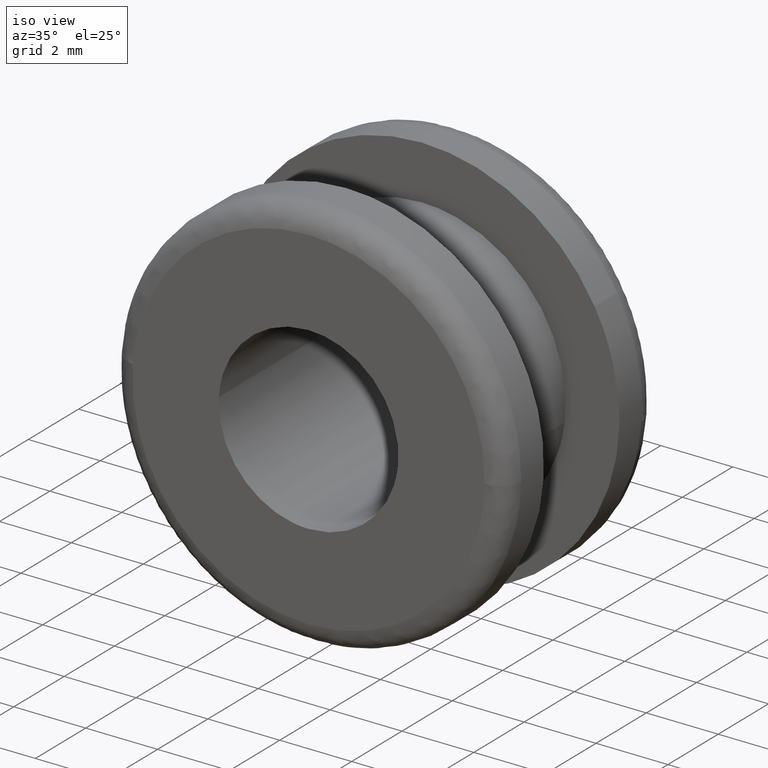
[diagram: clean part render]
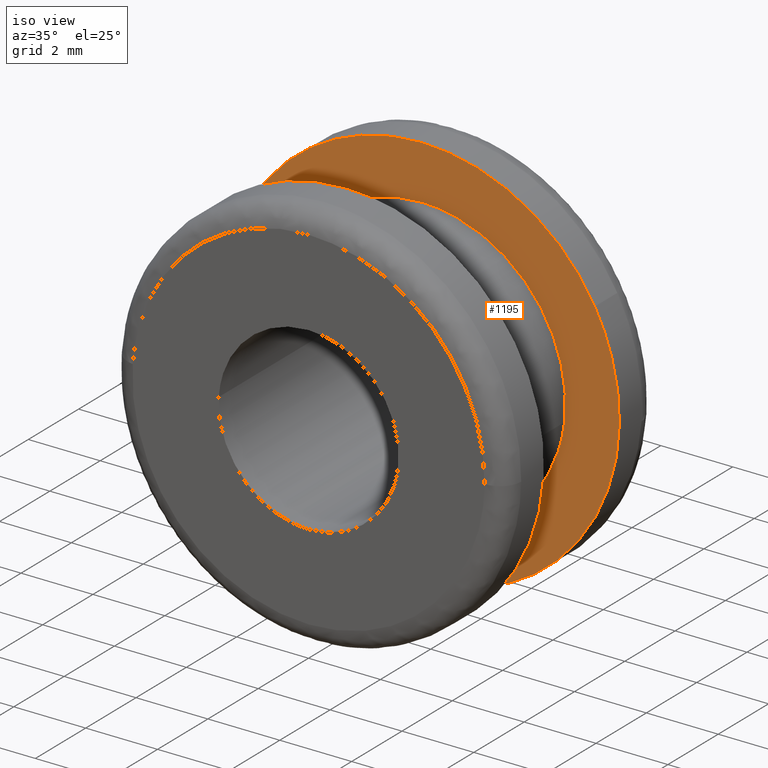
[diagram: same view with one face highlighted and labeled with its STEP entity id]
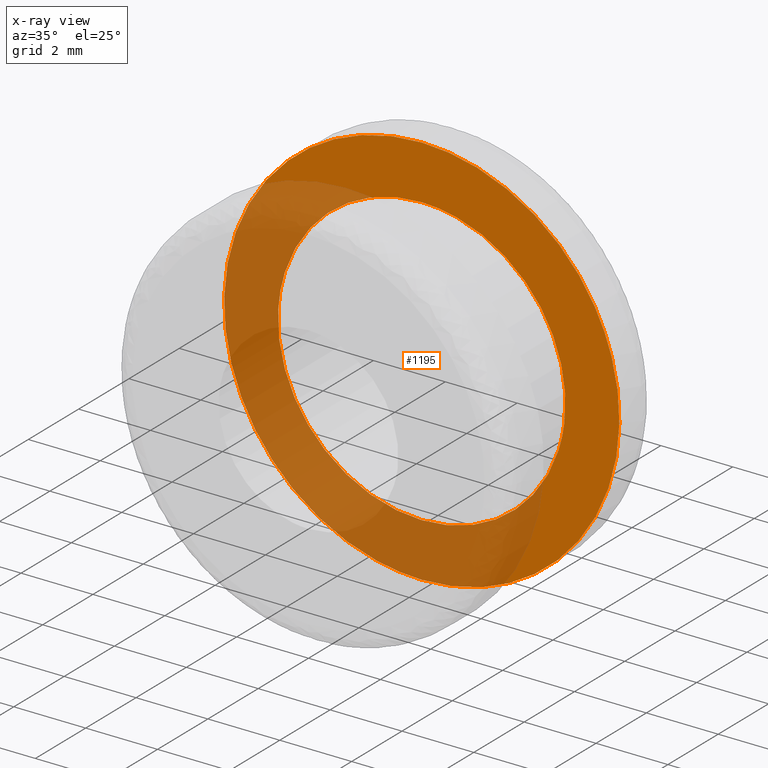
[diagram: x-ray of the same camera — body ghosted, the highlighted face saturated]
A machine part, iso view. The second image highlights one B-rep face of the part: STEP entity #1195.
The next image is the same camera in x-ray: the body ghosted, the highlighted face saturated — about 50% of this face is hidden behind the body in this view.
In plain terms, the highlighted face is a freeform B-spline surface patch.
Its self-contained STEP definition (entity closure, byte-faithful):
#301=CARTESIAN_POINT('',(3.972038515447482,4.500000000000000,-0.472133489375299));
#302=VERTEX_POINT('',#301);
#308=CARTESIAN_POINT('',(0.0,4.500000000000000,4.0));
#309=VERTEX_POINT('',#308);
#310=CARTESIAN_POINT('',(3.972038515447482,4.500000000000000,-0.472133489375300));
#311=CARTESIAN_POINT('',(4.000000000000000,4.500000000000001,-0.236894735749473));
#312=CARTESIAN_POINT('',(4.0,4.500000000000000,-1.928755E-016));
#313=CARTESIAN_POINT('',(4.000000000000000,4.500000000000000,4.000000000000000));
#314=CARTESIAN_POINT('',(0.0,4.500000000000000,4.0));
#322=(BOUNDED_CURVE()B_SPLINE_CURVE(2,(#310,#311,#312,#313,#314),.UNSPECIFIED.,.F.,.U.)B_SPLINE_CURVE_WITH_KNOTS((3,2,3),(0.229562620275259,0.250000000000000,0.500000000000000),.UNSPECIFIED.)CURVE()GEOMETRIC_REPRESENTATION_ITEM()RATIONAL_B_SPLINE_CURVE((0.956027041842938,0.976056120273231,1.0,0.707106781186548,1.0))REPRESENTATION_ITEM(''));
#323=EDGE_CURVE('',#302,#309,#322,.T.);
#325=CARTESIAN_POINT('',(-3.992539417849797,4.500000000000000,0.244190493062515));
#326=VERTEX_POINT('',#325);
#327=CARTESIAN_POINT('',(0.0,4.500000000000000,4.0));
#328=CARTESIAN_POINT('',(-3.762827728281775,4.499999999999999,4.0));
#329=CARTESIAN_POINT('',(-3.992539417849797,4.500000000000000,0.244190493062515));
#337=(BOUNDED_CURVE()B_SPLINE_CURVE(2,(#327,#328,#329),.UNSPECIFIED.,.F.,.U.)B_SPLINE_CURVE_WITH_KNOTS((3,3),(0.500000000000000,0.739333120636739),.UNSPECIFIED.)CURVE()GEOMETRIC_REPRESENTATION_ITEM()RATIONAL_B_SPLINE_CURVE((1.0,0.719603807712149,0.976072381143582))REPRESENTATION_ITEM(''));
#338=EDGE_CURVE('',#309,#326,#337,.T.);
#412=CARTESIAN_POINT('',(0.0,4.500000000000000,-4.0));
#413=VERTEX_POINT('',#412);
#414=CARTESIAN_POINT('',(-3.992539417849797,4.500000000000000,0.244190493062515));
#415=CARTESIAN_POINT('',(-4.000000000000000,4.500000000000001,0.122209215517769));
#416=CARTESIAN_POINT('',(-4.0,4.500000000000000,-1.928755E-016));
#417=CARTESIAN_POINT('',(-4.000000000000000,4.500000000000000,-4.000000000000000));
#418=CARTESIAN_POINT('',(0.0,4.500000000000000,-4.0));
#426=(BOUNDED_CURVE()B_SPLINE_CURVE(2,(#414,#415,#416,#417,#418),.UNSPECIFIED.,.F.,.U.)B_SPLINE_CURVE_WITH_KNOTS((3,2,3),(0.739333120636739,0.750000000000000,1.0),.UNSPECIFIED.)CURVE()GEOMETRIC_REPRESENTATION_ITEM()RATIONAL_B_SPLINE_CURVE((0.976072381143582,0.987502973474399,1.0,0.707106781186548,1.0))REPRESENTATION_ITEM(''));
#427=EDGE_CURVE('',#326,#413,#426,.T.);
#429=CARTESIAN_POINT('',(0.0,4.500000000000000,-4.0));
#430=CARTESIAN_POINT('',(3.552701210628367,4.500000000000001,-4.0));
#431=CARTESIAN_POINT('',(3.972038515447482,4.500000000000000,-0.472133489375300));
#439=(BOUNDED_CURVE()B_SPLINE_CURVE(2,(#429,#430,#431),.UNSPECIFIED.,.F.,.U.)B_SPLINE_CURVE_WITH_KNOTS((3,3),(0.0,0.229562620275259),.UNSPECIFIED.)CURVE()GEOMETRIC_REPRESENTATION_ITEM()RATIONAL_B_SPLINE_CURVE((1.0,0.731050660913317,0.956027041842938))REPRESENTATION_ITEM(''));
#440=EDGE_CURVE('',#413,#302,#439,.T.);
#496=CARTESIAN_POINT('',(-3.715745924040497,4.500000000000000,4.055025552074405));
#497=VERTEX_POINT('',#496);
#503=CARTESIAN_POINT('',(0.0,4.500000000000000,5.500000000000000));
#504=VERTEX_POINT('',#503);
#505=CARTESIAN_POINT('',(0.0,4.500000000000000,5.500000000000000));
#506=CARTESIAN_POINT('',(-2.138832685034934,4.500000000000000,5.500000000000000));
#507=CARTESIAN_POINT('',(-3.715745924040497,4.500000000000001,4.055025552074405));
#515=(BOUNDED_CURVE()B_SPLINE_CURVE(2,(#505,#506,#507),.UNSPECIFIED.,.F.,.U.)B_SPLINE_CURVE_WITH_KNOTS((3,3),(0.500000000000000,0.618415192864190),.UNSPECIFIED.)CURVE()GEOMETRIC_REPRESENTATION_ITEM()RATIONAL_B_SPLINE_CURVE((1.0,0.861267972022367,0.853959782840026))REPRESENTATION_ITEM(''));
#516=EDGE_CURVE('',#504,#497,#515,.T.);
#518=CARTESIAN_POINT('',(4.812205804631674,4.500000000000000,2.663207707609066));
#519=VERTEX_POINT('',#518);
#520=CARTESIAN_POINT('',(4.812205804631675,4.500000000000000,2.663207707609067));
#521=CARTESIAN_POINT('',(3.242247168853135,4.500000000000001,5.499999999999999));
#522=CARTESIAN_POINT('',(0.0,4.500000000000000,5.500000000000000));
#530=(BOUNDED_CURVE()B_SPLINE_CURVE(2,(#520,#521,#522),.UNSPECIFIED.,.F.,.U.)B_SPLINE_CURVE_WITH_KNOTS((3,3),(0.332484236540648,0.500000000000000),.UNSPECIFIED.)CURVE()GEOMETRIC_REPRESENTATION_ITEM()RATIONAL_B_SPLINE_CURVE((0.870495179237803,0.803743075353590,1.0))REPRESENTATION_ITEM(''));
#531=EDGE_CURVE('',#519,#504,#530,.T.);
#581=CARTESIAN_POINT('',(0.0,4.500000000000000,-5.500000000000000));
#582=VERTEX_POINT('',#581);
#583=CARTESIAN_POINT('',(0.0,4.500000000000000,-5.500000000000000));
#584=CARTESIAN_POINT('',(5.500000000000001,4.500000000000000,-5.500000000000001));
#585=CARTESIAN_POINT('',(5.500000000000000,4.500000000000000,-1.928755E-016));
#586=CARTESIAN_POINT('',(5.500000000000001,4.499999999999999,1.420417466066309));
#587=CARTESIAN_POINT('',(4.812205804631675,4.500000000000000,2.663207707609067));
#595=(BOUNDED_CURVE()B_SPLINE_CURVE(2,(#583,#584,#585,#586,#587),.UNSPECIFIED.,.F.,.U.)B_SPLINE_CURVE_WITH_KNOTS((3,2,3),(0.0,0.250000000000000,0.332484236540648),.UNSPECIFIED.)CURVE()GEOMETRIC_REPRESENTATION_ITEM()RATIONAL_B_SPLINE_CURVE((1.0,0.707106781186548,1.0,0.903363705832958,0.870495179237803))REPRESENTATION_ITEM(''));
#596=EDGE_CURVE('',#582,#519,#595,.T.);
#598=CARTESIAN_POINT('',(-3.715745924040497,4.500000000000001,4.055025552074405));
#599=CARTESIAN_POINT('',(-5.499999999999999,4.500000000000002,2.420058272584527));
#600=CARTESIAN_POINT('',(-5.500000000000000,4.500000000000000,-1.928755E-016));
#601=CARTESIAN_POINT('',(-5.500000000000001,4.500000000000000,-5.500000000000001));
#602=CARTESIAN_POINT('',(0.0,4.500000000000000,-5.500000000000000));
#610=(BOUNDED_CURVE()B_SPLINE_CURVE(2,(#598,#599,#600,#601,#602),.UNSPECIFIED.,.F.,.U.)B_SPLINE_CURVE_WITH_KNOTS((3,2,3),(0.618415192864190,0.750000000000000,1.0),.UNSPECIFIED.)CURVE()GEOMETRIC_REPRESENTATION_ITEM()RATIONAL_B_SPLINE_CURVE((0.853959782840026,0.845838809164181,1.0,0.707106781186548,1.0))REPRESENTATION_ITEM(''));
#611=EDGE_CURVE('',#497,#582,#610,.T.);
#1178=CARTESIAN_POINT('',(-6.046946720834078,4.500000000000000,-6.049449978679865));
#1179=CARTESIAN_POINT('',(-6.046946720834077,4.500000000000000,6.049450273722857));
#1180=CARTESIAN_POINT('',(6.048059426303208,4.500000000000000,-6.049449978679865));
#1181=CARTESIAN_POINT('',(6.048059426303208,4.500000000000000,6.049450273722857));
#1182=B_SPLINE_SURFACE_WITH_KNOTS('',1,1,((#1178,#1180),(#1179,#1181)),.UNSPECIFIED.,.F.,.F.,.U.,(2,2),(2,2),(0.0,12.098900252402720),(0.0,12.095006147137290),.UNSPECIFIED.);
#1183=ORIENTED_EDGE('',*,*,#596,.T.);
#1184=ORIENTED_EDGE('',*,*,#531,.T.);
#1185=ORIENTED_EDGE('',*,*,#516,.T.);
#1186=ORIENTED_EDGE('',*,*,#611,.T.);
#1187=EDGE_LOOP('',(#1183,#1184,#1185,#1186));
#1188=FACE_OUTER_BOUND('',#1187,.T.);
#1189=ORIENTED_EDGE('',*,*,#338,.F.);
#1190=ORIENTED_EDGE('',*,*,#323,.F.);
#1191=ORIENTED_EDGE('',*,*,#440,.F.);
#1192=ORIENTED_EDGE('',*,*,#427,.F.);
#1193=EDGE_LOOP('',(#1189,#1190,#1191,#1192));
#1194=FACE_BOUND('',#1193,.T.);
#1195=ADVANCED_FACE('',(#1188,#1194),#1182,.F.);